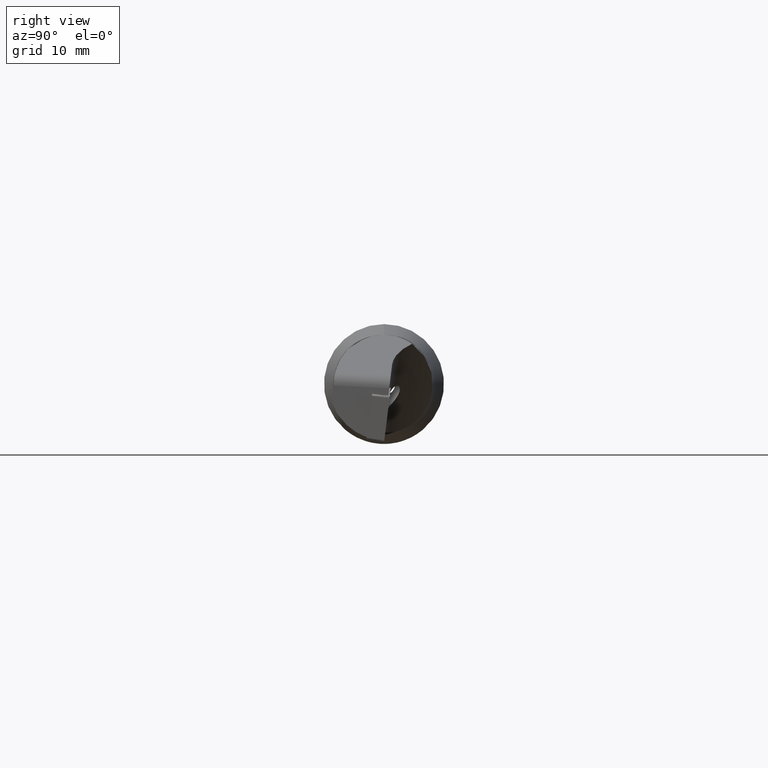
[diagram: clean part render]
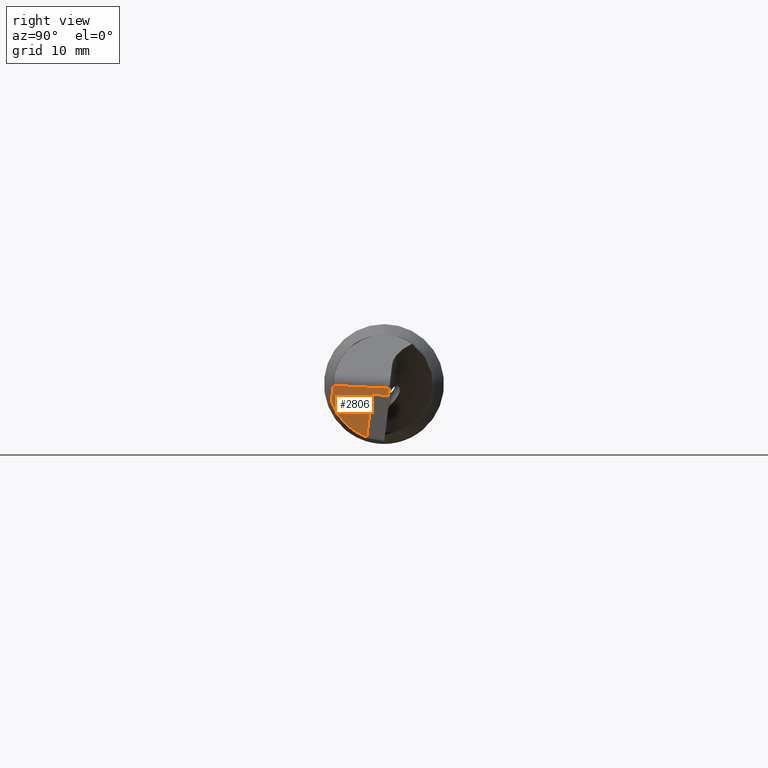
[diagram: same view with one face highlighted and labeled with its STEP entity id]
A machine part, right view. The second image highlights one B-rep face of the part: STEP entity #2806.
In plain terms, the highlighted planar face has unit normal (-0.9925, 0.121, -0.0149).
Its self-contained STEP definition (entity closure, byte-faithful):
#2 = ORIENTED_EDGE ( 'NONE', *, *, #3403, .T. ) ;
#5 = DIRECTION ( 'NONE',  ( -0.1209742911513547600, -0.9926556406329574100, 0.0000000000000000000 ) ) ;
#54 = DIRECTION ( 'NONE',  ( 0.1218412152930786200, 0.9823022576053877000, -0.1422567852837400000 ) ) ;
#67 = CARTESIAN_POINT ( 'NONE',  ( 94.50777274505108500, -2.302685562093975700, -7.099757397851055500 ) ) ;
#180 = ORIENTED_EDGE ( 'NONE', *, *, #3167, .T. ) ;
#210 = VERTEX_POINT ( 'NONE', #2998 ) ;
#221 = CARTESIAN_POINT ( 'NONE',  ( 94.22254974253165500, -4.547080074552694900, -6.317856035481026000 ) ) ;
#378 = CARTESIAN_POINT ( 'NONE',  ( 94.50777274505108500, -1.588592638603307600, -1.283937247177911100 ) ) ;
#423 = CARTESIAN_POINT ( 'NONE',  ( 94.77544308781945400, 0.7445133235893977000, -0.1703237628220238800 ) ) ;
#516 = EDGE_CURVE ( 'NONE', #3126, #1039, #518, .T. ) ;
#518 = LINE ( 'NONE', #423, #1873 ) ;
#558 = PLANE ( 'NONE',  #2625 ) ;
#574 = VECTOR ( 'NONE', #54, 1000.000000000000200 ) ;
#628 = FACE_OUTER_BOUND ( 'NONE', #2900, .T. ) ;
#763 = CARTESIAN_POINT ( 'NONE',  ( 94.50777274505108500, -2.302685562093975700, -7.099757397851055500 ) ) ;
#849 = DIRECTION ( 'NONE',  ( -0.9925461516413220900, 0.1209609477998340700, -0.01485213686200182600 ) ) ;
#908 = EDGE_CURVE ( 'NONE', #1255, #2472, #2467, .T. ) ;
#993 = ORIENTED_EDGE ( 'NONE', *, *, #1264, .T. ) ;
#1016 = CARTESIAN_POINT ( 'NONE',  ( 94.70865202666311700, 0.03299334919894107000, -1.501641939441932900 ) ) ;
#1039 = VERTEX_POINT ( 'NONE', #1847 ) ;
#1176 = CARTESIAN_POINT ( 'NONE',  ( 94.72871910252679600, 0.3149912379094734200, -0.5460061878557100900 ) ) ;
#1255 = VERTEX_POINT ( 'NONE', #2521 ) ;
#1264 = EDGE_CURVE ( 'NONE', #3126, #210, #2710, .T. ) ;
#1298 = DIRECTION ( 'NONE',  ( 0.1212370908936029200, 0.9924347297240669900, -0.01936168972931922800 ) ) ;
#1306 = LINE ( 'NONE', #3099, #574 ) ;
#1478 = DIRECTION ( 'NONE',  ( -0.1215687888871665700, -0.9912720265122597600, 0.05099802959708469400 ) ) ;
#1565 = VERTEX_POINT ( 'NONE', #3363 ) ;
#1847 = CARTESIAN_POINT ( 'NONE',  ( 94.77544308781945400, 0.5797383118014841600, -1.512308541496379300 ) ) ;
#1873 = VECTOR ( 'NONE', #2643, 1000.000000000000100 ) ;
#1899 = CARTESIAN_POINT ( 'NONE',  ( 94.79999999999999700, -0.1218693434051476700, -8.867546151641320800 ) ) ;
#1988 = VECTOR ( 'NONE', #3303, 1000.000000000000100 ) ;
#1994 = VECTOR ( 'NONE', #1478, 1000.000000000000100 ) ;
#2010 = CARTESIAN_POINT ( 'NONE',  ( 93.85950451063752100, -7.724496023325698100, -7.934060973038567600 ) ) ;
#2030 = VECTOR ( 'NONE', #2308, 1000.000000000000100 ) ;
#2069 = LINE ( 'NONE', #2010, #2030 ) ;
#2241 = EDGE_CURVE ( 'NONE', #3534, #2472, #2619, .T. ) ;
#2285 = CARTESIAN_POINT ( 'NONE',  ( 93.85950451063752100, -7.036660727985995400, -2.332092042403830500 ) ) ;
#2308 = DIRECTION ( 'NONE',  ( -3.495501893001518600E-018, 0.1218693434051477300, 0.9925461516413219800 ) ) ;
#2319 = VECTOR ( 'NONE', #1298, 1000.000000000000000 ) ;
#2380 = ORIENTED_EDGE ( 'NONE', *, *, #2241, .F. ) ;
#2390 = CARTESIAN_POINT ( 'NONE',  ( 93.99063140665698800, -6.240662428682267800, -4.612220996548824600 ) ) ;
#2445 = ORIENTED_EDGE ( 'NONE', *, *, #3082, .F. ) ;
#2467 =( BOUNDED_CURVE ( )  B_SPLINE_CURVE ( 3, ( #2285, #2390, #221, #763 ),
 .UNSPECIFIED., .F., .F. ) 
 B_SPLINE_CURVE_WITH_KNOTS ( ( 4, 4 ),
 ( 4.565379154137098700, 5.478284075494655300 ),
 .UNSPECIFIED. ) 
 CURVE ( )  GEOMETRIC_REPRESENTATION_ITEM ( )  RATIONAL_B_SPLINE_CURVE ( ( 1.000000000000000000, 0.9317478527786297000, 0.9317478527786297000, 1.000000000000000000 ) ) 
 REPRESENTATION_ITEM ( '' )  );
#2472 = VERTEX_POINT ( 'NONE', #67 ) ;
#2521 = CARTESIAN_POINT ( 'NONE',  ( 93.85950451063752100, -7.036660727985995400, -2.332092042403830500 ) ) ;
#2609 = ORIENTED_EDGE ( 'NONE', *, *, #908, .T. ) ;
#2619 = LINE ( 'NONE', #3013, #1988 ) ;
#2625 = AXIS2_PLACEMENT_3D ( 'NONE', #1899, #849, #5 ) ;
#2643 = DIRECTION ( 'NONE',  ( -3.373159326746465800E-016, -0.1218693434051504700, -0.9925461516413215400 ) ) ;
#2710 = LINE ( 'NONE', #1176, #1994 ) ;
#2806 = ADVANCED_FACE ( 'NONE', ( #628 ), #558, .F. ) ;
#2900 = EDGE_LOOP ( 'NONE', ( #2919, #993, #2445, #2609, #2380, #2, #180 ) ) ;
#2919 = ORIENTED_EDGE ( 'NONE', *, *, #516, .F. ) ;
#2998 = CARTESIAN_POINT ( 'NONE',  ( 93.85950451063752100, -6.772585416126596600, -0.1813712195454561000 ) ) ;
#3013 = CARTESIAN_POINT ( 'NONE',  ( 94.50777274505108500, -2.484129184311493900, -8.577497114337068900 ) ) ;
#3082 = EDGE_CURVE ( 'NONE', #1255, #210, #2069, .T. ) ;
#3099 = CARTESIAN_POINT ( 'NONE',  ( 94.81910029153634400, 0.9213770053435125200, -1.647430469292735700 ) ) ;
#3126 = VERTEX_POINT ( 'NONE', #3485 ) ;
#3167 = EDGE_CURVE ( 'NONE', #1565, #1039, #3360, .T. ) ;
#3303 = DIRECTION ( 'NONE',  ( 1.760778417024711500E-018, -0.1218693434051477400, -0.9925461516413219800 ) ) ;
#3360 = LINE ( 'NONE', #1016, #2319 ) ;
#3363 = CARTESIAN_POINT ( 'NONE',  ( 94.69194958640544300, -0.1037311602781502300, -1.498974542330966200 ) ) ;
#3403 = EDGE_CURVE ( 'NONE', #3534, #1565, #1306, .T. ) ;
#3485 = CARTESIAN_POINT ( 'NONE',  ( 94.77544308781945400, 0.6959786608470566200, -0.5656068699605509800 ) ) ;
#3534 = VERTEX_POINT ( 'NONE', #378 ) ;